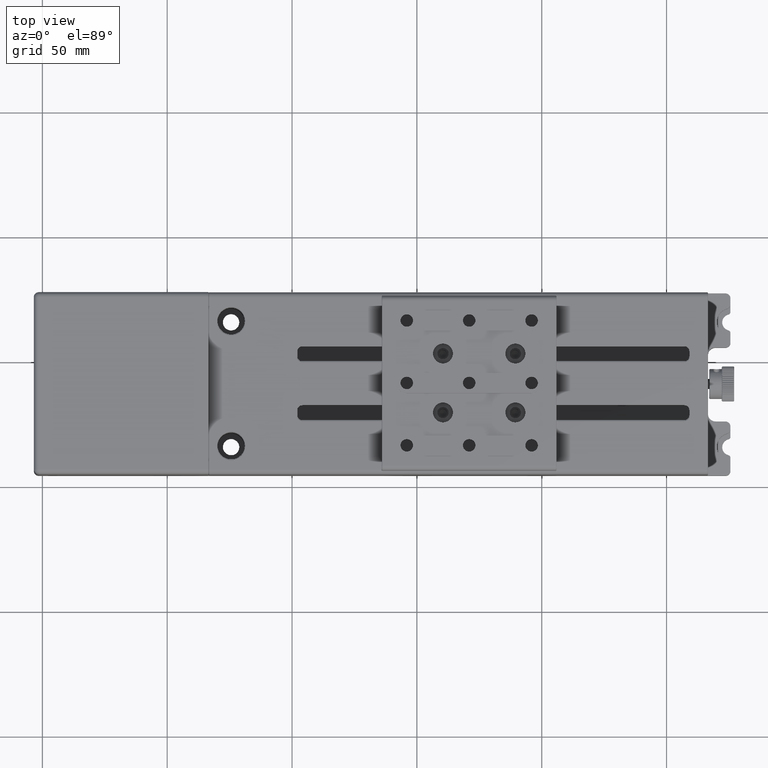
[diagram: clean part render]
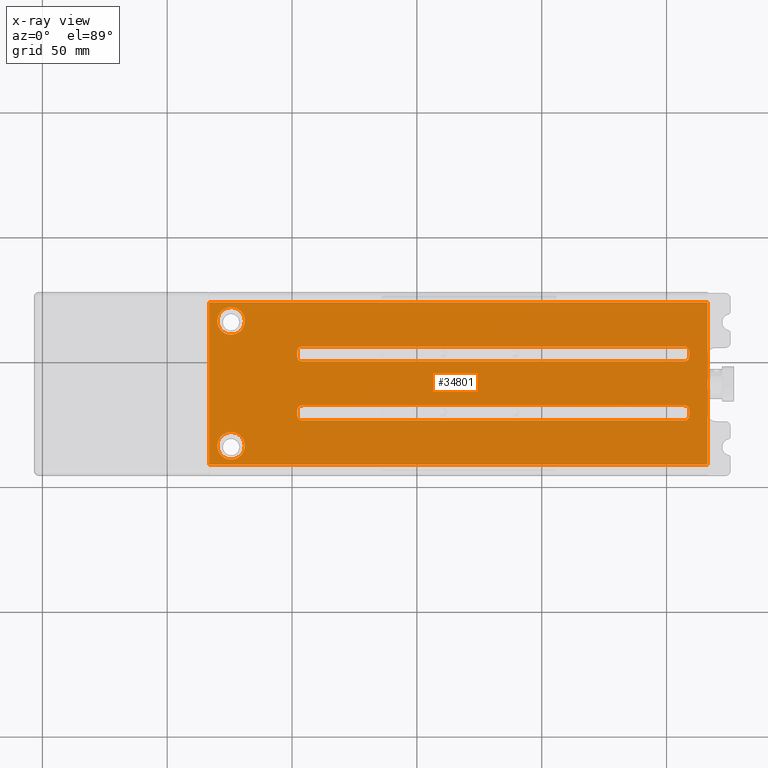
[diagram: x-ray — body ghosted, one internal face saturated and labeled with its STEP entity id]
A machine part, top view, then the same camera in x-ray: the body is ghosted and one INTERNAL B-rep face — a face not visible from any outside direction — is saturated and labeled: STEP entity #34801.
In plain terms, the highlighted planar face has unit normal (0, 0, -1).
Its self-contained STEP definition (entity closure, byte-faithful):
#40 = VECTOR ( 'NONE', #5827, 1000.000000000000000 ) ;
#315 = CARTESIAN_POINT ( 'NONE',  ( 109.0747400185975948, -0.1691974502527995028, 28.00000000000000000 ) ) ;
#488 = EDGE_CURVE ( 'NONE', #49320, #18309, #62761, .T. ) ;
#519 = ORIENTED_EDGE ( 'NONE', *, *, #13677, .T. ) ;
#874 = CARTESIAN_POINT ( 'NONE',  ( -47.92525998140230570, -23.76919745025280051, 28.00000000000000000 ) ) ;
#1035 = PLANE ( 'NONE',  #16016 ) ;
#1788 = CARTESIAN_POINT ( 'NONE',  ( -47.92525998140230570, 1.830802549747225116, 28.00000000000000000 ) ) ;
#2043 = VERTEX_POINT ( 'NONE', #13607 ) ;
#3295 = LINE ( 'NONE', #47669, #58800 ) ;
#4294 = EDGE_CURVE ( 'NONE', #40873, #57583, #3295, .T. ) ;
#4467 = ORIENTED_EDGE ( 'NONE', *, *, #45029, .T. ) ;
#4592 = VERTEX_POINT ( 'NONE', #54343 ) ;
#4658 = VECTOR ( 'NONE', #37721, 1000.000000000000000 ) ;
#5115 = VERTEX_POINT ( 'NONE', #10592 ) ;
#5118 = CIRCLE ( 'NONE', #9688, 2.000000000000001776 ) ;
#5354 = EDGE_CURVE ( 'NONE', #23240, #43840, #27824, .T. ) ;
#5827 = DIRECTION ( 'NONE',  ( 1.000000000000000000, -8.945427555100779139E-17, 0.000000000000000000 ) ) ;
#5911 = AXIS2_PLACEMENT_3D ( 'NONE', #53799, #15540, #52713 ) ;
#6082 = LINE ( 'NONE', #56217, #44966 ) ;
#6145 = ORIENTED_EDGE ( 'NONE', *, *, #488, .T. ) ;
#6513 = LINE ( 'NONE', #33272, #40 ) ;
#6974 = CARTESIAN_POINT ( 'NONE',  ( -83.22525998140230286, 23.53080254974724994, 28.00000000000000000 ) ) ;
#7307 = CIRCLE ( 'NONE', #8447, 5.500000000000005329 ) ;
#7548 = CARTESIAN_POINT ( 'NONE',  ( 116.5747400185975948, -41.46919745025279980, 28.00000000000000000 ) ) ;
#7613 = CARTESIAN_POINT ( 'NONE',  ( -45.92525998140230570, 1.830802549747225116, 28.00000000000000000 ) ) ;
#8009 = AXIS2_PLACEMENT_3D ( 'NONE', #15790, #27719, #32423 ) ;
#8259 = LINE ( 'NONE', #63089, #23293 ) ;
#8447 = AXIS2_PLACEMENT_3D ( 'NONE', #29762, #62922, #51744 ) ;
#9184 = VERTEX_POINT ( 'NONE', #45475 ) ;
#9646 = ORIENTED_EDGE ( 'NONE', *, *, #44790, .T. ) ;
#9688 = AXIS2_PLACEMENT_3D ( 'NONE', #30920, #31997, #58698 ) ;
#9999 = ORIENTED_EDGE ( 'NONE', *, *, #35462, .T. ) ;
#10186 = ORIENTED_EDGE ( 'NONE', *, *, #54971, .T. ) ;
#10592 = CARTESIAN_POINT ( 'NONE',  ( 109.0747400185975948, 1.830802549747200025, 28.00000000000000000 ) ) ;
#11438 = EDGE_CURVE ( 'NONE', #51509, #9184, #28297, .T. ) ;
#12180 = DIRECTION ( 'NONE',  ( 0.000000000000000000, -1.000000000000000000, 0.000000000000000000 ) ) ;
#13607 = CARTESIAN_POINT ( 'NONE',  ( 109.0747400185975948, -19.76919745025280406, 28.00000000000000000 ) ) ;
#13677 = EDGE_CURVE ( 'NONE', #34047, #39308, #54326, .T. ) ;
#14597 = ORIENTED_EDGE ( 'NONE', *, *, #5354, .F. ) ;
#14683 = EDGE_LOOP ( 'NONE', ( #25040, #34830 ) ) ;
#14916 = VERTEX_POINT ( 'NONE', #1788 ) ;
#15540 = DIRECTION ( 'NONE',  ( 0.000000000000000000, 0.000000000000000000, -1.000000000000000000 ) ) ;
#15790 = CARTESIAN_POINT ( 'NONE',  ( -74.42525998140230570, 16.03080254974724994, 28.00000000000000000 ) ) ;
#16016 = AXIS2_PLACEMENT_3D ( 'NONE', #29867, #51491, #12180 ) ;
#16932 = EDGE_CURVE ( 'NONE', #68123, #53490, #31624, .T. ) ;
#17292 = CIRCLE ( 'NONE', #60910, 2.000000000000001776 ) ;
#17336 = DIRECTION ( 'NONE',  ( -1.000000000000000000, 0.000000000000000000, 0.000000000000000000 ) ) ;
#18022 = DIRECTION ( 'NONE',  ( -1.000000000000000000, 2.220446049250315053E-16, 0.000000000000000000 ) ) ;
#18309 = VERTEX_POINT ( 'NONE', #42883 ) ;
#18850 = EDGE_CURVE ( 'NONE', #14916, #49320, #24707, .T. ) ;
#19431 = CARTESIAN_POINT ( 'NONE',  ( -68.92525998140229149, -33.96919745025275006, 28.00000000000000000 ) ) ;
#19482 = DIRECTION ( 'NONE',  ( 1.000000000000000000, -1.336510520090155810E-16, 0.000000000000000000 ) ) ;
#19742 = EDGE_CURVE ( 'NONE', #9184, #68246, #62838, .T. ) ;
#20173 = DIRECTION ( 'NONE',  ( -2.334869823772509994E-16, -1.000000000000000000, 0.000000000000000000 ) ) ;
#20307 = ORIENTED_EDGE ( 'NONE', *, *, #19742, .T. ) ;
#21909 = AXIS2_PLACEMENT_3D ( 'NONE', #45439, #28863, #30277 ) ;
#22326 = CARTESIAN_POINT ( 'NONE',  ( -45.92525998140230570, 5.830802549747220453, 28.00000000000000000 ) ) ;
#22771 = DIRECTION ( 'NONE',  ( 0.000000000000000000, 0.000000000000000000, 1.000000000000000000 ) ) ;
#23040 = FACE_BOUND ( 'NONE', #64142, .T. ) ;
#23240 = VERTEX_POINT ( 'NONE', #26573 ) ;
#23293 = VECTOR ( 'NONE', #46522, 1000.000000000000000 ) ;
#23443 = CARTESIAN_POINT ( 'NONE',  ( -45.92525998140230570, -17.76919745025280051, 28.00000000000000000 ) ) ;
#23604 = CARTESIAN_POINT ( 'NONE',  ( 107.0747400185975948, -17.76919745025280051, 28.00000000000000000 ) ) ;
#23687 = CARTESIAN_POINT ( 'NONE',  ( 116.5747400185975948, 23.53080254974720020, 28.00000000000000000 ) ) ;
#23985 = ORIENTED_EDGE ( 'NONE', *, *, #67060, .T. ) ;
#24283 = EDGE_CURVE ( 'NONE', #69289, #36791, #8259, .T. ) ;
#24707 = CIRCLE ( 'NONE', #47780, 2.000000000000001776 ) ;
#25040 = ORIENTED_EDGE ( 'NONE', *, *, #51756, .F. ) ;
#25107 = CARTESIAN_POINT ( 'NONE',  ( -74.42525998140230570, 16.03080254974724994, 28.00000000000000000 ) ) ;
#25316 = ORIENTED_EDGE ( 'NONE', *, *, #48058, .T. ) ;
#25319 = CIRCLE ( 'NONE', #39091, 2.000000000000001776 ) ;
#26573 = CARTESIAN_POINT ( 'NONE',  ( -79.92525998140230570, -33.96919745025275006, 28.00000000000000000 ) ) ;
#26618 = ORIENTED_EDGE ( 'NONE', *, *, #71421, .T. ) ;
#26930 = CARTESIAN_POINT ( 'NONE',  ( 109.0747400185975948, -17.76919745025280051, 28.00000000000000000 ) ) ;
#27719 = DIRECTION ( 'NONE',  ( 0.000000000000000000, 0.000000000000000000, -1.000000000000000000 ) ) ;
#27824 = CIRCLE ( 'NONE', #5911, 5.500000000000005329 ) ;
#27885 = EDGE_CURVE ( 'NONE', #35491, #69289, #45108, .T. ) ;
#28297 = LINE ( 'NONE', #874, #61205 ) ;
#28455 = FACE_BOUND ( 'NONE', #14683, .T. ) ;
#28767 = VECTOR ( 'NONE', #30278, 1000.000000000000000 ) ;
#28863 = DIRECTION ( 'NONE',  ( 0.000000000000000000, 0.000000000000000000, 1.000000000000000000 ) ) ;
#29109 = LINE ( 'NONE', #23687, #39243 ) ;
#29289 = AXIS2_PLACEMENT_3D ( 'NONE', #25107, #42414, #48180 ) ;
#29428 = AXIS2_PLACEMENT_3D ( 'NONE', #66534, #51000, #38770 ) ;
#29641 = DIRECTION ( 'NONE',  ( 0.000000000000000000, 0.000000000000000000, 1.000000000000000000 ) ) ;
#29762 = CARTESIAN_POINT ( 'NONE',  ( -74.42525998140230570, -33.96919745025275006, 28.00000000000000000 ) ) ;
#29842 = CARTESIAN_POINT ( 'NONE',  ( 107.0747400185975948, 5.830802549747209795, 28.00000000000000000 ) ) ;
#29867 = CARTESIAN_POINT ( 'NONE',  ( 116.5747400185975948, 27.53080254974720020, 28.00000000000000000 ) ) ;
#30277 = DIRECTION ( 'NONE',  ( -1.000000000000000000, 0.000000000000000000, 0.000000000000000000 ) ) ;
#30278 = DIRECTION ( 'NONE',  ( -1.110223024625155924E-16, -1.000000000000000000, 0.000000000000000000 ) ) ;
#30881 = CARTESIAN_POINT ( 'NONE',  ( 107.0747400185975948, 3.830802549747209795, 28.00000000000000000 ) ) ;
#30920 = CARTESIAN_POINT ( 'NONE',  ( -45.92525998140230570, 3.830802549747220009, 28.00000000000000000 ) ) ;
#30949 = ORIENTED_EDGE ( 'NONE', *, *, #59049, .T. ) ;
#31624 = CIRCLE ( 'NONE', #29289, 5.500000000000005329 ) ;
#31997 = DIRECTION ( 'NONE',  ( 0.000000000000000000, 0.000000000000000000, 1.000000000000000000 ) ) ;
#32079 = ORIENTED_EDGE ( 'NONE', *, *, #18850, .T. ) ;
#32423 = DIRECTION ( 'NONE',  ( -1.000000000000000000, 0.000000000000000000, 0.000000000000000000 ) ) ;
#33257 = CARTESIAN_POINT ( 'NONE',  ( 107.0747400185975948, -19.76919745025280406, 28.00000000000000000 ) ) ;
#33272 = CARTESIAN_POINT ( 'NONE',  ( 109.0747400185975948, -23.76919745025280051, 28.00000000000000000 ) ) ;
#33615 = DIRECTION ( 'NONE',  ( 0.000000000000000000, 0.000000000000000000, 1.000000000000000000 ) ) ;
#34047 = VERTEX_POINT ( 'NONE', #23604 ) ;
#34575 = FACE_OUTER_BOUND ( 'NONE', #42759, .T. ) ;
#34801 = ADVANCED_FACE ( 'NONE', ( #62328, #39616, #28455, #23040, #34575 ), #1035, .T. ) ;
#34830 = ORIENTED_EDGE ( 'NONE', *, *, #16932, .F. ) ;
#35462 = EDGE_CURVE ( 'NONE', #68246, #67774, #6513, .T. ) ;
#35491 = VERTEX_POINT ( 'NONE', #50892 ) ;
#35877 = EDGE_CURVE ( 'NONE', #4592, #2043, #6082, .T. ) ;
#35933 = CIRCLE ( 'NONE', #47477, 2.000000000000001776 ) ;
#36653 = DIRECTION ( 'NONE',  ( 0.000000000000000000, 0.000000000000000000, 1.000000000000000000 ) ) ;
#36791 = VERTEX_POINT ( 'NONE', #6974 ) ;
#36932 = VERTEX_POINT ( 'NONE', #70731 ) ;
#37583 = EDGE_CURVE ( 'NONE', #36791, #46472, #29109, .T. ) ;
#37721 = DIRECTION ( 'NONE',  ( -1.000000000000000000, 8.945427555100779139E-17, 0.000000000000000000 ) ) ;
#38008 = CIRCLE ( 'NONE', #21909, 2.000000000000001776 ) ;
#38648 = CARTESIAN_POINT ( 'NONE',  ( -45.92525998140230570, -19.76919745025280406, 28.00000000000000000 ) ) ;
#38770 = DIRECTION ( 'NONE',  ( -1.000000000000000000, 0.000000000000000000, 0.000000000000000000 ) ) ;
#39091 = AXIS2_PLACEMENT_3D ( 'NONE', #38648, #33615, #44771 ) ;
#39135 = CIRCLE ( 'NONE', #8009, 5.500000000000005329 ) ;
#39243 = VECTOR ( 'NONE', #56856, 1000.000000000000000 ) ;
#39308 = VERTEX_POINT ( 'NONE', #23443 ) ;
#39616 = FACE_BOUND ( 'NONE', #41771, .T. ) ;
#40873 = VERTEX_POINT ( 'NONE', #29842 ) ;
#41771 = EDGE_LOOP ( 'NONE', ( #6145, #26618, #25316, #49445, #59281, #30949, #9646, #32079 ) ) ;
#42285 = CARTESIAN_POINT ( 'NONE',  ( -68.92525998140229149, 16.03080254974724994, 28.00000000000000000 ) ) ;
#42414 = DIRECTION ( 'NONE',  ( 0.000000000000000000, 0.000000000000000000, -1.000000000000000000 ) ) ;
#42759 = EDGE_LOOP ( 'NONE', ( #69278, #54465, #65804, #4467 ) ) ;
#42883 = CARTESIAN_POINT ( 'NONE',  ( 107.0747400185975948, -0.1691974502527960056, 28.00000000000000000 ) ) ;
#43840 = VERTEX_POINT ( 'NONE', #19431 ) ;
#44395 = CARTESIAN_POINT ( 'NONE',  ( -45.92525998140230570, -23.76919745025280051, 28.00000000000000000 ) ) ;
#44410 = VECTOR ( 'NONE', #19482, 1000.000000000000000 ) ;
#44771 = DIRECTION ( 'NONE',  ( -1.000000000000000000, 0.000000000000000000, 0.000000000000000000 ) ) ;
#44790 = EDGE_CURVE ( 'NONE', #66268, #14916, #56249, .T. ) ;
#44966 = VECTOR ( 'NONE', #67746, 1000.000000000000000 ) ;
#44997 = CARTESIAN_POINT ( 'NONE',  ( 116.3747400185976062, 23.53080254974720020, 28.00000000000000000 ) ) ;
#45029 = EDGE_CURVE ( 'NONE', #46472, #35491, #59470, .T. ) ;
#45108 = LINE ( 'NONE', #7548, #52179 ) ;
#45439 = CARTESIAN_POINT ( 'NONE',  ( 107.0747400185975948, -21.76919745025279695, 28.00000000000000000 ) ) ;
#45475 = CARTESIAN_POINT ( 'NONE',  ( -47.92525998140230570, -21.76919745025279695, 28.00000000000000000 ) ) ;
#46472 = VERTEX_POINT ( 'NONE', #44997 ) ;
#46522 = DIRECTION ( 'NONE',  ( 1.110223024625155924E-16, 1.000000000000000000, 0.000000000000000000 ) ) ;
#46627 = CARTESIAN_POINT ( 'NONE',  ( -83.22525998140230286, -41.46919745025275006, 28.00000000000000000 ) ) ;
#47173 = DIRECTION ( 'NONE',  ( 0.000000000000000000, 0.000000000000000000, 1.000000000000000000 ) ) ;
#47477 = AXIS2_PLACEMENT_3D ( 'NONE', #33257, #22771, #17336 ) ;
#47669 = CARTESIAN_POINT ( 'NONE',  ( 109.0747400185975948, 5.830802549747209795, 28.00000000000000000 ) ) ;
#47728 = EDGE_LOOP ( 'NONE', ( #9999, #23985, #53790, #10186, #519, #55867, #57391, #20307 ) ) ;
#47780 = AXIS2_PLACEMENT_3D ( 'NONE', #7613, #29641, #67157 ) ;
#48058 = EDGE_CURVE ( 'NONE', #5115, #36932, #65594, .T. ) ;
#48180 = DIRECTION ( 'NONE',  ( -1.000000000000000000, 0.000000000000000000, 0.000000000000000000 ) ) ;
#48244 = DIRECTION ( 'NONE',  ( -1.000000000000000000, 2.168404344971006896E-16, 0.000000000000000000 ) ) ;
#49320 = VERTEX_POINT ( 'NONE', #68756 ) ;
#49445 = ORIENTED_EDGE ( 'NONE', *, *, #50753, .T. ) ;
#50331 = ORIENTED_EDGE ( 'NONE', *, *, #68896, .F. ) ;
#50753 = EDGE_CURVE ( 'NONE', #36932, #40873, #70151, .T. ) ;
#50892 = CARTESIAN_POINT ( 'NONE',  ( 116.3747400185976062, -41.46919745025279980, 28.00000000000000000 ) ) ;
#51000 = DIRECTION ( 'NONE',  ( 0.000000000000000000, 0.000000000000000000, 1.000000000000000000 ) ) ;
#51356 = CARTESIAN_POINT ( 'NONE',  ( -47.92525998140230570, 3.830802549747224894, 28.00000000000000000 ) ) ;
#51473 = VECTOR ( 'NONE', #65238, 1000.000000000000000 ) ;
#51491 = DIRECTION ( 'NONE',  ( 0.000000000000000000, 0.000000000000000000, -1.000000000000000000 ) ) ;
#51509 = VERTEX_POINT ( 'NONE', #67776 ) ;
#51542 = CARTESIAN_POINT ( 'NONE',  ( -47.92525998140230570, -0.1691974502527754942, 28.00000000000000000 ) ) ;
#51744 = DIRECTION ( 'NONE',  ( -1.000000000000000000, 0.000000000000000000, 0.000000000000000000 ) ) ;
#51756 = EDGE_CURVE ( 'NONE', #53490, #68123, #39135, .T. ) ;
#52179 = VECTOR ( 'NONE', #18022, 1000.000000000000000 ) ;
#52713 = DIRECTION ( 'NONE',  ( -1.000000000000000000, 0.000000000000000000, 0.000000000000000000 ) ) ;
#53490 = VERTEX_POINT ( 'NONE', #42285 ) ;
#53790 = ORIENTED_EDGE ( 'NONE', *, *, #35877, .T. ) ;
#53799 = CARTESIAN_POINT ( 'NONE',  ( -74.42525998140230570, -33.96919745025275006, 28.00000000000000000 ) ) ;
#54326 = LINE ( 'NONE', #26930, #4658 ) ;
#54343 = CARTESIAN_POINT ( 'NONE',  ( 109.0747400185975948, -21.76919745025279695, 28.00000000000000000 ) ) ;
#54465 = ORIENTED_EDGE ( 'NONE', *, *, #24283, .T. ) ;
#54699 = CARTESIAN_POINT ( 'NONE',  ( 107.0747400185975948, -23.76919745025280051, 28.00000000000000000 ) ) ;
#54971 = EDGE_CURVE ( 'NONE', #2043, #34047, #35933, .T. ) ;
#55153 = AXIS2_PLACEMENT_3D ( 'NONE', #30881, #36653, #57208 ) ;
#55867 = ORIENTED_EDGE ( 'NONE', *, *, #70634, .T. ) ;
#56217 = CARTESIAN_POINT ( 'NONE',  ( 109.0747400185975948, -23.76919745025280051, 28.00000000000000000 ) ) ;
#56249 = LINE ( 'NONE', #51542, #28767 ) ;
#56856 = DIRECTION ( 'NONE',  ( 1.000000000000000000, -2.220446049250315053E-16, 0.000000000000000000 ) ) ;
#57208 = DIRECTION ( 'NONE',  ( -1.000000000000000000, 1.084202172485503448E-15, 0.000000000000000000 ) ) ;
#57391 = ORIENTED_EDGE ( 'NONE', *, *, #11438, .T. ) ;
#57583 = VERTEX_POINT ( 'NONE', #22326 ) ;
#57773 = DIRECTION ( 'NONE',  ( -1.000000000000000000, 1.115526637800115937E-16, 0.000000000000000000 ) ) ;
#58698 = DIRECTION ( 'NONE',  ( -1.000000000000000000, -5.204170427930416550E-15, 0.000000000000000000 ) ) ;
#58800 = VECTOR ( 'NONE', #57773, 1000.000000000000000 ) ;
#59049 = EDGE_CURVE ( 'NONE', #57583, #66268, #5118, .T. ) ;
#59281 = ORIENTED_EDGE ( 'NONE', *, *, #4294, .T. ) ;
#59470 = LINE ( 'NONE', #63805, #63294 ) ;
#59700 = DIRECTION ( 'NONE',  ( -1.110223024625155924E-16, -1.000000000000000000, 0.000000000000000000 ) ) ;
#60910 = AXIS2_PLACEMENT_3D ( 'NONE', #69177, #47173, #48244 ) ;
#61205 = VECTOR ( 'NONE', #59700, 1000.000000000000000 ) ;
#62328 = FACE_BOUND ( 'NONE', #47728, .T. ) ;
#62761 = LINE ( 'NONE', #68892, #44410 ) ;
#62838 = CIRCLE ( 'NONE', #29428, 2.000000000000001776 ) ;
#62922 = DIRECTION ( 'NONE',  ( 0.000000000000000000, 0.000000000000000000, -1.000000000000000000 ) ) ;
#63089 = CARTESIAN_POINT ( 'NONE',  ( -83.22525998140230286, 23.53080254974724994, 28.00000000000000000 ) ) ;
#63294 = VECTOR ( 'NONE', #20173, 1000.000000000000000 ) ;
#63805 = CARTESIAN_POINT ( 'NONE',  ( 116.3747400185976062, -41.46919745025279980, 28.00000000000000000 ) ) ;
#64142 = EDGE_LOOP ( 'NONE', ( #50331, #14597 ) ) ;
#64971 = CARTESIAN_POINT ( 'NONE',  ( -79.92525998140230570, 16.03080254974724994, 28.00000000000000000 ) ) ;
#65238 = DIRECTION ( 'NONE',  ( -3.353798720221824995E-17, 1.000000000000000000, 0.000000000000000000 ) ) ;
#65594 = LINE ( 'NONE', #315, #51473 ) ;
#65804 = ORIENTED_EDGE ( 'NONE', *, *, #37583, .T. ) ;
#66268 = VERTEX_POINT ( 'NONE', #51356 ) ;
#66534 = CARTESIAN_POINT ( 'NONE',  ( -45.92525998140230570, -21.76919745025279695, 28.00000000000000000 ) ) ;
#67060 = EDGE_CURVE ( 'NONE', #67774, #4592, #38008, .T. ) ;
#67157 = DIRECTION ( 'NONE',  ( -1.000000000000000000, 2.168404344971006896E-16, 0.000000000000000000 ) ) ;
#67746 = DIRECTION ( 'NONE',  ( 2.555825921272494964E-16, 1.000000000000000000, 0.000000000000000000 ) ) ;
#67774 = VERTEX_POINT ( 'NONE', #54699 ) ;
#67776 = CARTESIAN_POINT ( 'NONE',  ( -47.92525998140230570, -19.76919745025280406, 28.00000000000000000 ) ) ;
#68123 = VERTEX_POINT ( 'NONE', #64971 ) ;
#68246 = VERTEX_POINT ( 'NONE', #44395 ) ;
#68756 = CARTESIAN_POINT ( 'NONE',  ( -45.92525998140230570, -0.1691974502527789914, 28.00000000000000000 ) ) ;
#68892 = CARTESIAN_POINT ( 'NONE',  ( 109.0747400185975948, -0.1691974502527995028, 28.00000000000000000 ) ) ;
#68896 = EDGE_CURVE ( 'NONE', #43840, #23240, #7307, .T. ) ;
#69177 = CARTESIAN_POINT ( 'NONE',  ( 107.0747400185975948, 1.830802549747205132, 28.00000000000000000 ) ) ;
#69278 = ORIENTED_EDGE ( 'NONE', *, *, #27885, .T. ) ;
#69289 = VERTEX_POINT ( 'NONE', #46627 ) ;
#70151 = CIRCLE ( 'NONE', #55153, 2.000000000000001776 ) ;
#70634 = EDGE_CURVE ( 'NONE', #39308, #51509, #25319, .T. ) ;
#70731 = CARTESIAN_POINT ( 'NONE',  ( 109.0747400185975948, 3.830802549747204910, 28.00000000000000000 ) ) ;
#71421 = EDGE_CURVE ( 'NONE', #18309, #5115, #17292, .T. ) ;